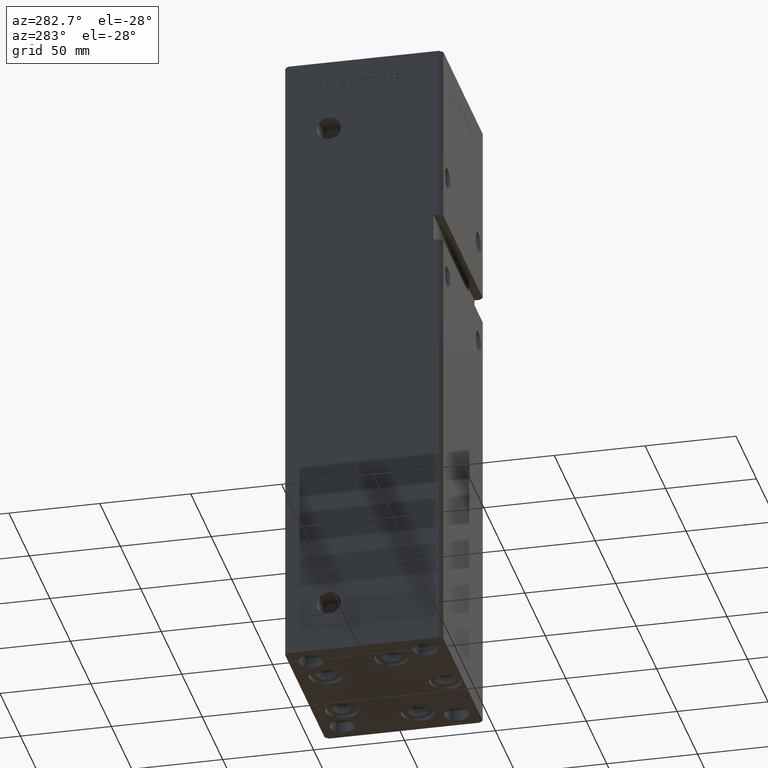
[diagram: clean part render]
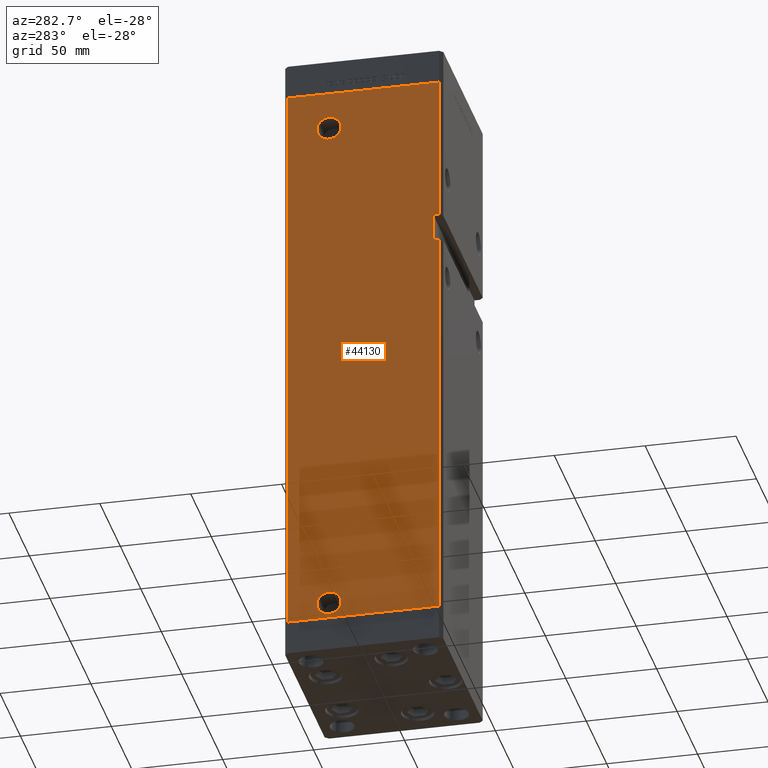
[diagram: same view with one face highlighted and labeled with its STEP entity id]
A machine part, auxiliary view. The second image highlights one B-rep face of the part: STEP entity #44130.
In plain terms, the highlighted planar face has unit normal (1, 0, 0).
Its self-contained STEP definition (entity closure, byte-faithful):
#113 = VERTEX_POINT ( 'NONE', #52007 ) ;
#142 = DIRECTION ( 'NONE',  ( 3.344045254895050973E-16, -1.000000000000000000, 0.000000000000000000 ) ) ;
#1076 = VECTOR ( 'NONE', #51813, 1000.000000000000000 ) ;
#1287 = EDGE_CURVE ( 'NONE', #24218, #38583, #5784, .T. ) ;
#1538 = ORIENTED_EDGE ( 'NONE', *, *, #38752, .F. ) ;
#1780 = EDGE_CURVE ( 'NONE', #31380, #6884, #2812, .T. ) ;
#2812 = LINE ( 'NONE', #52264, #26408 ) ;
#3091 = AXIS2_PLACEMENT_3D ( 'NONE', #27438, #31987, #19885 ) ;
#4001 = CARTESIAN_POINT ( 'NONE',  ( -50.00000000000000711, 12.41999999999999638, 9.000000000000007105 ) ) ;
#4537 = FACE_BOUND ( 'NONE', #47729, .T. ) ;
#4794 = DIRECTION ( 'NONE',  ( 1.000000000000000000, 3.344045254895050480E-16, -0.000000000000000000 ) ) ;
#5069 = DIRECTION ( 'NONE',  ( -3.344045254895050480E-16, 1.000000000000000000, 0.000000000000000000 ) ) ;
#5339 = CIRCLE ( 'NONE', #19943, 6.580000000000044480 ) ;
#5482 = EDGE_CURVE ( 'NONE', #28323, #48705, #15858, .T. ) ;
#5746 = ORIENTED_EDGE ( 'NONE', *, *, #37179, .F. ) ;
#5784 = CIRCLE ( 'NONE', #12680, 6.580000000000002736 ) ;
#6482 = CARTESIAN_POINT ( 'NONE',  ( -50.00000000000000711, 12.41999999999995552, 297.5000000000000000 ) ) ;
#6654 = LINE ( 'NONE', #39480, #18836 ) ;
#6884 = VERTEX_POINT ( 'NONE', #13304 ) ;
#7927 = DIRECTION ( 'NONE',  ( -0.000000000000000000, -0.000000000000000000, -1.000000000000000000 ) ) ;
#8038 = EDGE_CURVE ( 'NONE', #13975, #37051, #40952, .T. ) ;
#9374 = EDGE_LOOP ( 'NONE', ( #1538, #17511, #18790, #41464, #37997, #50783, #14503, #23728 ) ) ;
#9504 = DIRECTION ( 'NONE',  ( -1.000000000000000000, -2.275047181608927644E-16, 0.000000000000000000 ) ) ;
#9597 = EDGE_CURVE ( 'NONE', #28323, #31537, #49214, .T. ) ;
#10157 = CARTESIAN_POINT ( 'NONE',  ( -49.99999999999998579, -38.50000000000000000, 223.0000000000000000 ) ) ;
#10174 = EDGE_LOOP ( 'NONE', ( #5746, #51431 ) ) ;
#11947 = DIRECTION ( 'NONE',  ( -0.000000000000000000, -1.000000000000000000, -0.000000000000000000 ) ) ;
#11988 = EDGE_CURVE ( 'NONE', #38583, #24218, #26283, .T. ) ;
#12680 = AXIS2_PLACEMENT_3D ( 'NONE', #14317, #34476, #21598 ) ;
#12812 = VECTOR ( 'NONE', #11947, 1000.000000000000000 ) ;
#13000 = CIRCLE ( 'NONE', #30159, 6.580000000000044480 ) ;
#13279 = CARTESIAN_POINT ( 'NONE',  ( -50.00000000000000711, 19.00000000000000000, 297.5000000000000000 ) ) ;
#13304 = CARTESIAN_POINT ( 'NONE',  ( -49.99999999999998579, -41.49999999999999289, 223.0000000000000000 ) ) ;
#13975 = VERTEX_POINT ( 'NONE', #20164 ) ;
#14317 = CARTESIAN_POINT ( 'NONE',  ( -50.00000000000000711, 19.00000000000000000, 9.000000000000007105 ) ) ;
#14503 = ORIENTED_EDGE ( 'NONE', *, *, #5482, .T. ) ;
#15289 = CARTESIAN_POINT ( 'NONE',  ( -49.99999999999998579, -41.49999999999999289, 318.5000000000000000 ) ) ;
#15858 = LINE ( 'NONE', #36537, #25648 ) ;
#16009 = LINE ( 'NONE', #48761, #45984 ) ;
#17038 = EDGE_CURVE ( 'NONE', #48705, #113, #23831, .T. ) ;
#17511 = ORIENTED_EDGE ( 'NONE', *, *, #1780, .F. ) ;
#17709 = FACE_BOUND ( 'NONE', #10174, .T. ) ;
#18499 = DIRECTION ( 'NONE',  ( 0.000000000000000000, 0.000000000000000000, -1.000000000000000000 ) ) ;
#18790 = ORIENTED_EDGE ( 'NONE', *, *, #24433, .F. ) ;
#18836 = VECTOR ( 'NONE', #18499, 1000.000000000000000 ) ;
#19059 = LINE ( 'NONE', #35451, #1076 ) ;
#19885 = DIRECTION ( 'NONE',  ( 0.000000000000000000, -1.000000000000000000, 0.000000000000000000 ) ) ;
#19943 = AXIS2_PLACEMENT_3D ( 'NONE', #13279, #9504, #50073 ) ;
#20164 = CARTESIAN_POINT ( 'NONE',  ( -49.99999999999998579, -38.50000000000000000, 238.0000000000000284 ) ) ;
#20588 = CARTESIAN_POINT ( 'NONE',  ( -50.00000000000001421, 41.49999999999999289, 0.000000000000000000 ) ) ;
#21598 = DIRECTION ( 'NONE',  ( 0.000000000000000000, -1.000000000000000000, 0.000000000000000000 ) ) ;
#22736 = CARTESIAN_POINT ( 'NONE',  ( -49.99999999999998579, -41.49999999999999289, 238.0000000000000284 ) ) ;
#23728 = ORIENTED_EDGE ( 'NONE', *, *, #17038, .T. ) ;
#23831 = LINE ( 'NONE', #20588, #52156 ) ;
#24218 = VERTEX_POINT ( 'NONE', #4001 ) ;
#24433 = EDGE_CURVE ( 'NONE', #13975, #31380, #6654, .T. ) ;
#25648 = VECTOR ( 'NONE', #41610, 1000.000000000000000 ) ;
#26283 = CIRCLE ( 'NONE', #3091, 6.580000000000002736 ) ;
#26408 = VECTOR ( 'NONE', #31865, 1000.000000000000000 ) ;
#27438 = CARTESIAN_POINT ( 'NONE',  ( -50.00000000000000711, 19.00000000000000000, 9.000000000000007105 ) ) ;
#28074 = DIRECTION ( 'NONE',  ( -1.000000000000000000, -2.275047181608927644E-16, 0.000000000000000000 ) ) ;
#28323 = VERTEX_POINT ( 'NONE', #37055 ) ;
#29305 = PLANE ( 'NONE',  #40870 ) ;
#29558 = CARTESIAN_POINT ( 'NONE',  ( -50.00000000000001421, 41.49999999999999289, 318.5000000000000000 ) ) ;
#30159 = AXIS2_PLACEMENT_3D ( 'NONE', #52495, #28074, #39892 ) ;
#31380 = VERTEX_POINT ( 'NONE', #10157 ) ;
#31537 = VERTEX_POINT ( 'NONE', #15289 ) ;
#31865 = DIRECTION ( 'NONE',  ( -0.000000000000000000, -1.000000000000000000, -0.000000000000000000 ) ) ;
#31987 = DIRECTION ( 'NONE',  ( -1.000000000000000000, -2.275047181608927644E-16, 0.000000000000000000 ) ) ;
#32370 = CARTESIAN_POINT ( 'NONE',  ( -49.99999999999998579, -38.50000000000000000, 238.0000000000000284 ) ) ;
#32589 = CARTESIAN_POINT ( 'NONE',  ( -50.00000000000001421, 41.49999999999999289, 318.5000000000000000 ) ) ;
#32848 = DIRECTION ( 'NONE',  ( 3.344045254895050973E-16, -1.000000000000000000, 0.000000000000000000 ) ) ;
#34476 = DIRECTION ( 'NONE',  ( -1.000000000000000000, -2.275047181608927644E-16, 0.000000000000000000 ) ) ;
#35209 = EDGE_CURVE ( 'NONE', #36866, #50597, #13000, .T. ) ;
#35451 = CARTESIAN_POINT ( 'NONE',  ( -49.99999999999998579, -41.49999999999999289, 318.5000000000000000 ) ) ;
#35705 = CARTESIAN_POINT ( 'NONE',  ( -50.00000000000001421, 41.49999999999999289, 0.000000000000000000 ) ) ;
#36092 = ORIENTED_EDGE ( 'NONE', *, *, #11988, .F. ) ;
#36537 = CARTESIAN_POINT ( 'NONE',  ( -50.00000000000001421, 41.49999999999999289, 318.5000000000000000 ) ) ;
#36866 = VERTEX_POINT ( 'NONE', #44268 ) ;
#37051 = VERTEX_POINT ( 'NONE', #22736 ) ;
#37055 = CARTESIAN_POINT ( 'NONE',  ( -50.00000000000001421, 41.49999999999999289, 318.5000000000000000 ) ) ;
#37179 = EDGE_CURVE ( 'NONE', #50597, #36866, #5339, .T. ) ;
#37997 = ORIENTED_EDGE ( 'NONE', *, *, #48012, .F. ) ;
#38583 = VERTEX_POINT ( 'NONE', #40854 ) ;
#38752 = EDGE_CURVE ( 'NONE', #6884, #113, #19059, .T. ) ;
#39480 = CARTESIAN_POINT ( 'NONE',  ( -49.99999999999998579, -38.50000000000000000, 238.0000000000000284 ) ) ;
#39892 = DIRECTION ( 'NONE',  ( 0.000000000000000000, -1.000000000000000000, 0.000000000000000000 ) ) ;
#40854 = CARTESIAN_POINT ( 'NONE',  ( -50.00000000000000711, 25.58000000000000185, 9.000000000000007105 ) ) ;
#40870 = AXIS2_PLACEMENT_3D ( 'NONE', #29558, #4794, #5069 ) ;
#40952 = LINE ( 'NONE', #32370, #12812 ) ;
#41464 = ORIENTED_EDGE ( 'NONE', *, *, #8038, .T. ) ;
#41610 = DIRECTION ( 'NONE',  ( -0.000000000000000000, -0.000000000000000000, -1.000000000000000000 ) ) ;
#42201 = ORIENTED_EDGE ( 'NONE', *, *, #1287, .F. ) ;
#44130 = ADVANCED_FACE ( 'NONE', ( #46172, #4537, #17709 ), #29305, .F. ) ;
#44268 = CARTESIAN_POINT ( 'NONE',  ( -50.00000000000000711, 25.58000000000004448, 297.5000000000000000 ) ) ;
#45984 = VECTOR ( 'NONE', #7927, 1000.000000000000000 ) ;
#46172 = FACE_OUTER_BOUND ( 'NONE', #9374, .T. ) ;
#47729 = EDGE_LOOP ( 'NONE', ( #42201, #36092 ) ) ;
#48012 = EDGE_CURVE ( 'NONE', #31537, #37051, #16009, .T. ) ;
#48705 = VERTEX_POINT ( 'NONE', #35705 ) ;
#48761 = CARTESIAN_POINT ( 'NONE',  ( -49.99999999999998579, -41.49999999999999289, 318.5000000000000000 ) ) ;
#49214 = LINE ( 'NONE', #32589, #50261 ) ;
#50073 = DIRECTION ( 'NONE',  ( 0.000000000000000000, -1.000000000000000000, 0.000000000000000000 ) ) ;
#50261 = VECTOR ( 'NONE', #32848, 1000.000000000000000 ) ;
#50597 = VERTEX_POINT ( 'NONE', #6482 ) ;
#50783 = ORIENTED_EDGE ( 'NONE', *, *, #9597, .F. ) ;
#51431 = ORIENTED_EDGE ( 'NONE', *, *, #35209, .F. ) ;
#51813 = DIRECTION ( 'NONE',  ( -0.000000000000000000, -0.000000000000000000, -1.000000000000000000 ) ) ;
#52007 = CARTESIAN_POINT ( 'NONE',  ( -49.99999999999998579, -41.49999999999999289, 0.000000000000000000 ) ) ;
#52156 = VECTOR ( 'NONE', #142, 1000.000000000000000 ) ;
#52264 = CARTESIAN_POINT ( 'NONE',  ( -49.99999999999998579, -38.50000000000000000, 223.0000000000000000 ) ) ;
#52495 = CARTESIAN_POINT ( 'NONE',  ( -50.00000000000000711, 19.00000000000000000, 297.5000000000000000 ) ) ;